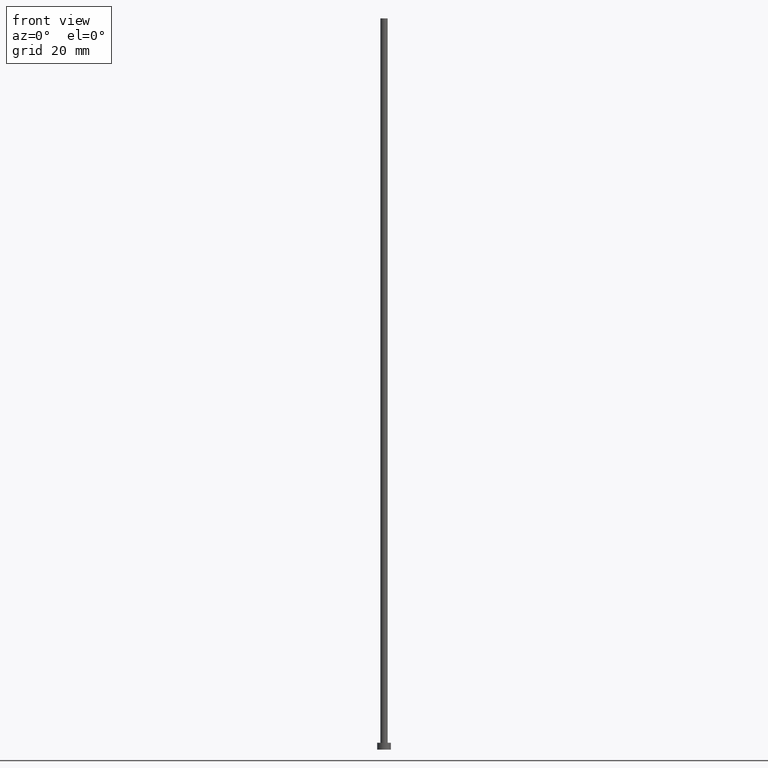
[diagram: clean part render]
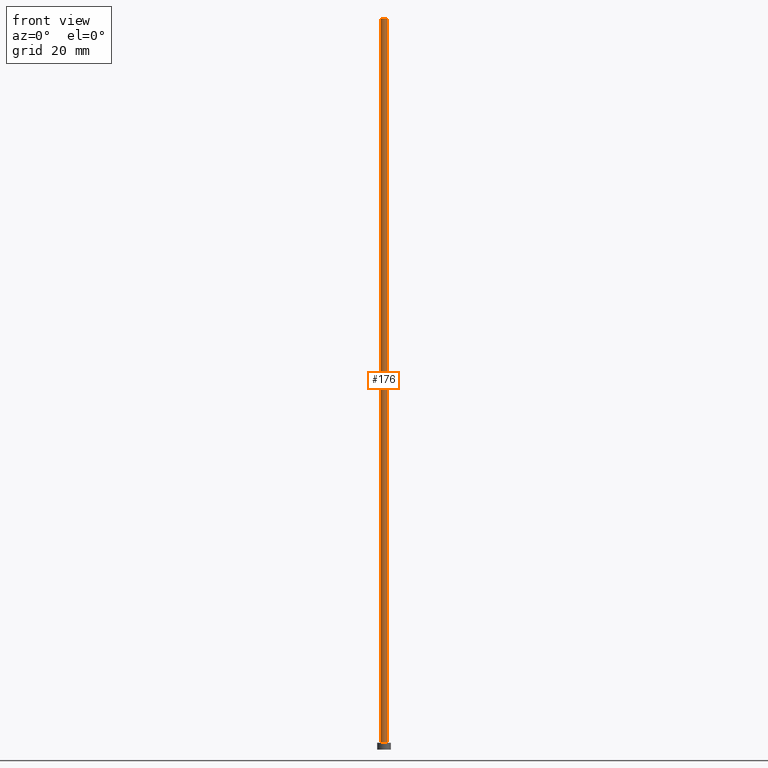
[diagram: same view with one face highlighted and labeled with its STEP entity id]
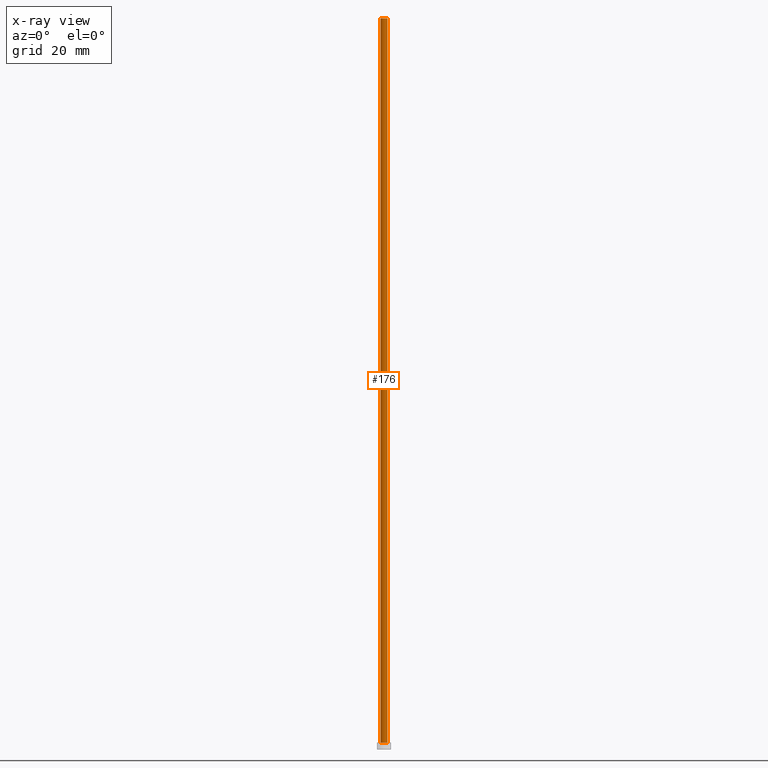
[diagram: x-ray of the same camera — body ghosted, the highlighted face saturated]
A machine part, front view. The second image highlights one B-rep face of the part: STEP entity #176.
The next image is the same camera in x-ray: the body ghosted, the highlighted face saturated — about 0% of this face is hidden behind the body in this view.
In plain terms, the highlighted cylindrical surface (edge-blend (fillet) strip) has radius 0.8 mm, axis along (-0, -0, -1).
Its self-contained STEP definition (entity closure, byte-faithful):
#20 = CIRCLE ( 'NONE', #174, 0.8000000000000000444 ) ;
#24 = DIRECTION ( 'NONE',  ( 0.000000000000000000, 0.000000000000000000, 1.000000000000000000 ) ) ;
#30 = CARTESIAN_POINT ( 'NONE',  ( 0.8000000000000000444, 9.797174393178826150E-17, 160.0000000000000000 ) ) ;
#31 = ORIENTED_EDGE ( 'NONE', *, *, #233, .F. ) ;
#32 = CARTESIAN_POINT ( 'NONE',  ( 0.000000000000000000, 0.000000000000000000, 160.0000000000000000 ) ) ;
#33 = LINE ( 'NONE', #72, #209 ) ;
#34 = VERTEX_POINT ( 'NONE', #156 ) ;
#35 = VERTEX_POINT ( 'NONE', #90 ) ;
#43 = VECTOR ( 'NONE', #140, 1000.000000000000000 ) ;
#46 = CARTESIAN_POINT ( 'NONE',  ( 0.8000000000000000444, 9.797174393178826150E-17, 1.500000000000000000 ) ) ;
#49 = EDGE_CURVE ( 'NONE', #34, #119, #20, .T. ) ;
#66 = VERTEX_POINT ( 'NONE', #30 ) ;
#72 = CARTESIAN_POINT ( 'NONE',  ( 0.8000000000000000444, 9.797174393178826150E-17, 160.0000000000000000 ) ) ;
#77 = LINE ( 'NONE', #105, #43 ) ;
#78 = CIRCLE ( 'NONE', #121, 0.8000000000000000444 ) ;
#84 = CARTESIAN_POINT ( 'NONE',  ( 0.000000000000000000, 0.000000000000000000, 160.0000000000000000 ) ) ;
#90 = CARTESIAN_POINT ( 'NONE',  ( -0.8000000000000000444, 0.000000000000000000, 160.0000000000000000 ) ) ;
#105 = CARTESIAN_POINT ( 'NONE',  ( -0.8000000000000000444, 0.000000000000000000, 160.0000000000000000 ) ) ;
#112 = EDGE_LOOP ( 'NONE', ( #192, #31, #173, #247 ) ) ;
#119 = VERTEX_POINT ( 'NONE', #46 ) ;
#120 = DIRECTION ( 'NONE',  ( 1.000000000000000000, 0.000000000000000000, 0.000000000000000000 ) ) ;
#121 = AXIS2_PLACEMENT_3D ( 'NONE', #32, #24, #120 ) ;
#127 = EDGE_CURVE ( 'NONE', #66, #119, #33, .T. ) ;
#140 = DIRECTION ( 'NONE',  ( -0.000000000000000000, -0.000000000000000000, -1.000000000000000000 ) ) ;
#142 = DIRECTION ( 'NONE',  ( 1.000000000000000000, 0.000000000000000000, 0.000000000000000000 ) ) ;
#156 = CARTESIAN_POINT ( 'NONE',  ( -0.8000000000000000444, 0.000000000000000000, 1.500000000000000000 ) ) ;
#158 = CARTESIAN_POINT ( 'NONE',  ( 0.000000000000000000, 0.000000000000000000, 1.500000000000000000 ) ) ;
#166 = AXIS2_PLACEMENT_3D ( 'NONE', #84, #227, #180 ) ;
#170 = CYLINDRICAL_SURFACE ( 'NONE', #166, 0.8000000000000000444 ) ;
#173 = ORIENTED_EDGE ( 'NONE', *, *, #208, .T. ) ;
#174 = AXIS2_PLACEMENT_3D ( 'NONE', #158, #213, #142 ) ;
#176 = ADVANCED_FACE ( 'NONE', ( #193 ), #170, .T. ) ;
#180 = DIRECTION ( 'NONE',  ( -1.000000000000000000, 0.000000000000000000, 0.000000000000000000 ) ) ;
#192 = ORIENTED_EDGE ( 'NONE', *, *, #127, .F. ) ;
#193 = FACE_OUTER_BOUND ( 'NONE', #112, .T. ) ;
#208 = EDGE_CURVE ( 'NONE', #35, #34, #77, .T. ) ;
#209 = VECTOR ( 'NONE', #224, 1000.000000000000000 ) ;
#213 = DIRECTION ( 'NONE',  ( 0.000000000000000000, 0.000000000000000000, 1.000000000000000000 ) ) ;
#224 = DIRECTION ( 'NONE',  ( -0.000000000000000000, -0.000000000000000000, -1.000000000000000000 ) ) ;
#227 = DIRECTION ( 'NONE',  ( -0.000000000000000000, -0.000000000000000000, -1.000000000000000000 ) ) ;
#233 = EDGE_CURVE ( 'NONE', #35, #66, #78, .T. ) ;
#247 = ORIENTED_EDGE ( 'NONE', *, *, #49, .T. ) ;